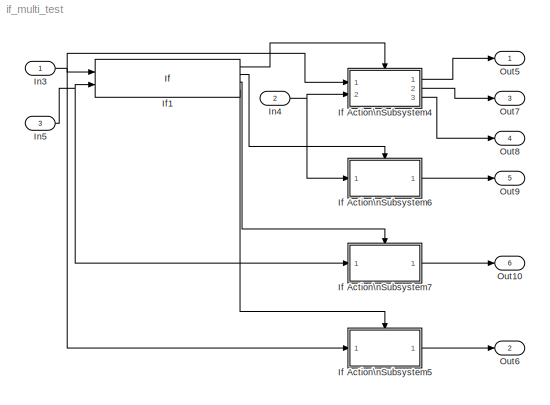
MODEL if_multi_test
KIND model
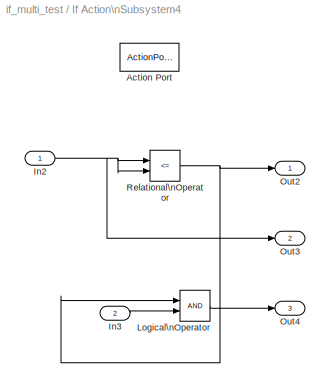
BLOCK [SubSystem] If Action\nSubsystem4
  Ports = [2, 3, 0, 0, 0, 0, 0, 1]
  RequestExecContextInheritance = off
  SID = 183
  TreatAsAtomicUnit = on
  Variant = off
BLOCK [ActionPort] If Action\nSubsystem4/Action Port
  ActionType = then
  SID = 186
BLOCK [Inport] If Action\nSubsystem4/In2
  IconDisplay = Port number
  SID = 184
BLOCK [Inport] If Action\nSubsystem4/In3
  IconDisplay = Port number
  Port = 2
  SID = 185
BLOCK [Logic] If Action\nSubsystem4/Logical\nOperator
  AllPortsSameDT = off
  OutDataTypeStr = boolean
  Ports = [2, 1]
  SID = 187
BLOCK [Outport] If Action\nSubsystem4/Out2
  IconDisplay = Port number
  SID = 189
BLOCK [Outport] If Action\nSubsystem4/Out3
  IconDisplay = Port number
  Port = 2
  SID = 190
BLOCK [Outport] If Action\nSubsystem4/Out4
  IconDisplay = Port number
  Port = 3
  SID = 191
BLOCK [RelationalOperator] If Action\nSubsystem4/Relational\nOperator
  InputSameDT = off
  Operator = <=
  OutDataTypeStr = boolean
  Ports = [2, 1]
  SID = 188
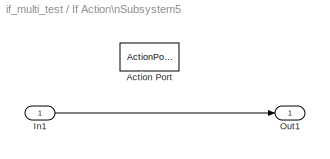
BLOCK [SubSystem] If Action\nSubsystem5
  Ports = [1, 1, 0, 0, 0, 0, 0, 1]
  RequestExecContextInheritance = off
  SID = 192
  TreatAsAtomicUnit = on
  Variant = off
BLOCK [ActionPort] If Action\nSubsystem5/Action Port
  ActionType = else
  SID = 194
BLOCK [Inport] If Action\nSubsystem5/In1
  IconDisplay = Port number
  SID = 193
BLOCK [Outport] If Action\nSubsystem5/Out1
  IconDisplay = Port number
  SID = 195
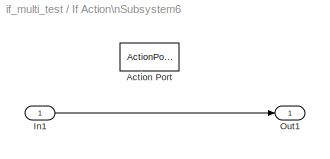
BLOCK [SubSystem] If Action\nSubsystem6
  Ports = [1, 1, 0, 0, 0, 0, 0, 1]
  RequestExecContextInheritance = off
  SID = 196
  TreatAsAtomicUnit = on
  Variant = off
BLOCK [ActionPort] If Action\nSubsystem6/Action Port
  ActionType = elseif
  SID = 198
BLOCK [Inport] If Action\nSubsystem6/In1
  IconDisplay = Port number
  SID = 197
BLOCK [Outport] If Action\nSubsystem6/Out1
  IconDisplay = Port number
  SID = 199
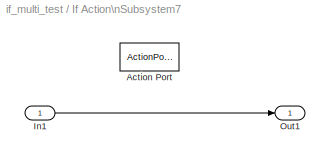
BLOCK [SubSystem] If Action\nSubsystem7
  Ports = [1, 1, 0, 0, 0, 0, 0, 1]
  RequestExecContextInheritance = off
  SID = 200
  TreatAsAtomicUnit = on
  Variant = off
BLOCK [ActionPort] If Action\nSubsystem7/Action Port
  ActionType = elseif
  SID = 202
BLOCK [Inport] If Action\nSubsystem7/In1
  IconDisplay = Port number
  SID = 201
BLOCK [Outport] If Action\nSubsystem7/Out1
  IconDisplay = Port number
  SID = 203
BLOCK [If] If1
  ElseIfExpressions = u2(2) < 3, (-u2(1) > u1(3)) & u2(2) > 0
  IfExpression = u1(2) == 0
  NumInputs = 2
  Ports = [2, 4]
  SID = 182
BLOCK [Inport] In3
  IconDisplay = Port number
  PortDimensions = 3
  SID = 179
BLOCK [Inport] In4
  IconDisplay = Port number
  OutDataTypeStr = boolean
  Port = 2
  SID = 180
BLOCK [Inport] In5
  IconDisplay = Port number
  Port = 3
  PortDimensions = 4
  SID = 181
BLOCK [Outport] Out10
  IconDisplay = Port number
  Port = 6
  SID = 209
BLOCK [Outport] Out5
  IconDisplay = Port number
  SID = 204
BLOCK [Outport] Out6
  IconDisplay = Port number
  Port = 2
  SID = 205
BLOCK [Outport] Out7
  IconDisplay = Port number
  Port = 3
  SID = 206
BLOCK [Outport] Out8
  IconDisplay = Port number
  Port = 4
  SID = 207
BLOCK [Outport] Out9
  IconDisplay = Port number
  Port = 5
  SID = 208
NET If Action\nSubsystem4/In2:1 -> If Action\nSubsystem4/Out3:1, If Action\nSubsystem4/Relational\nOperator:1, If Action\nSubsystem4/Relational\nOperator:2
LINE If Action\nSubsystem4/In3:1 -> If Action\nSubsystem4/Logical\nOperator:2
LINE If Action\nSubsystem4/Logical\nOperator:1 -> If Action\nSubsystem4/Out4:1
NET If Action\nSubsystem4/Relational\nOperator:1 -> If Action\nSubsystem4/Logical\nOperator:1, If Action\nSubsystem4/Out2:1
LINE If Action\nSubsystem4:1 -> Out5:1
LINE If Action\nSubsystem4:2 -> Out7:1
LINE If Action\nSubsystem4:3 -> Out8:1
LINE If Action\nSubsystem5/In1:1 -> If Action\nSubsystem5/Out1:1
LINE If Action\nSubsystem5:1 -> Out6:1
LINE If Action\nSubsystem6/In1:1 -> If Action\nSubsystem6/Out1:1
LINE If Action\nSubsystem6:1 -> Out9:1
LINE If Action\nSubsystem7/In1:1 -> If Action\nSubsystem7/Out1:1
LINE If Action\nSubsystem7:1 -> Out10:1
LINE If1:1 -> If Action\nSubsystem4:ifaction
LINE If1:2 -> If Action\nSubsystem6:ifaction
LINE If1:3 -> If Action\nSubsystem7:ifaction
LINE If1:4 -> If Action\nSubsystem5:ifaction
NET In3:1 -> If Action\nSubsystem4:1, If Action\nSubsystem5:1, If1:1
NET In4:1 -> If Action\nSubsystem4:2, If Action\nSubsystem6:1
NET In5:1 -> If Action\nSubsystem7:1, If1:2
note: NET lines group one-source signal fan-out (src -> all destinations, sorted); 1:1 wires keep LINE
